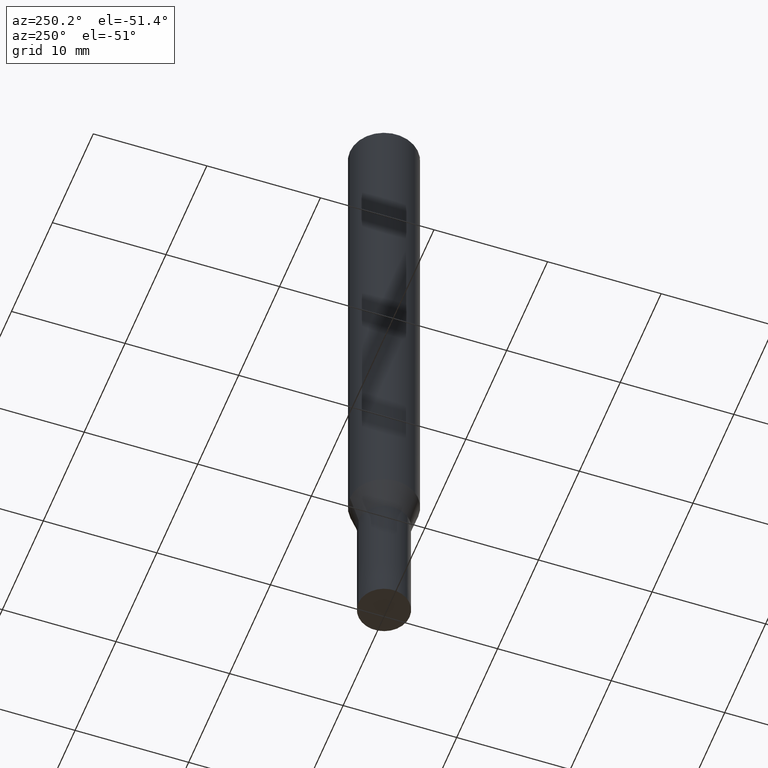
[diagram: clean part render]
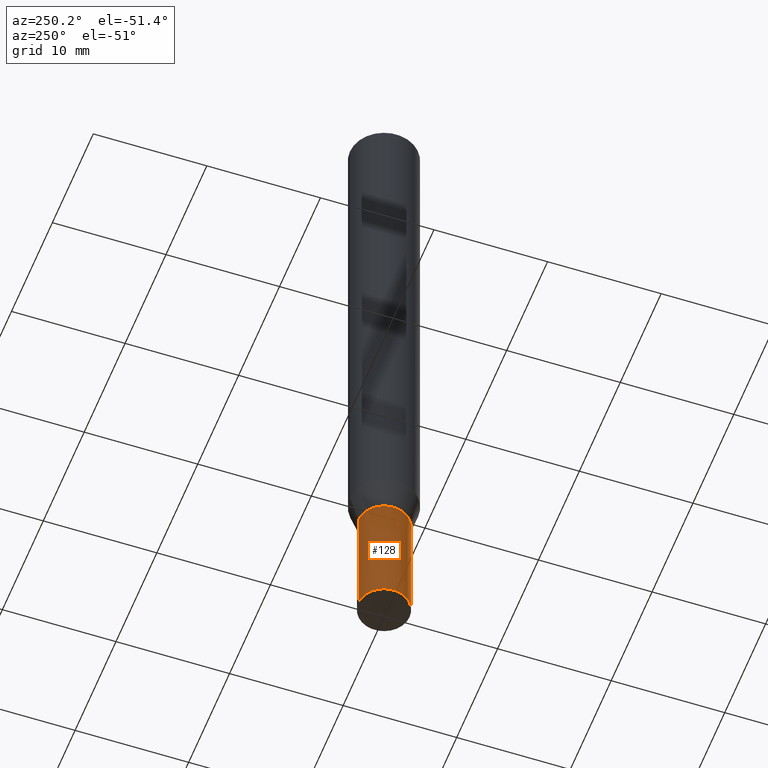
[diagram: same view with one face highlighted and labeled with its STEP entity id]
A machine part, auxiliary view. The second image highlights one B-rep face of the part: STEP entity #128.
In plain terms, the highlighted conical surface has half-angle 0.001 deg.
Its self-contained STEP definition (entity closure, byte-faithful):
#86=VERTEX_POINT('',#207);
#92=EDGE_CURVE('',#156,#86,#214,.T.);
#98=EDGE_CURVE('',#86,#148,#221,.T.);
#104=EDGE_CURVE('',#156,#108,#228,.T.);
#108=VERTEX_POINT('',#232);
#120=EDGE_CURVE('',#148,#108,#247,.T.);
#128=ADVANCED_FACE('',(#255),#256,.T.);
#148=VERTEX_POINT('',#278);
#156=VERTEX_POINT('',#286);
#207=CARTESIAN_POINT('',(2.75524183546497E-016,-2.2499,-49.0));
#214=LINE('',#344,#345);
#221=CIRCLE('',#354,2.2499);
#228=CIRCLE('',#362,2.25);
#232=CARTESIAN_POINT('',(0.0,2.25,-60.0));
#247=LINE('',#387,#388);
#255=FACE_OUTER_BOUND('',#398,.T.);
#256=CONICAL_SURFACE('',#399,2.24995,9.09090909067784E-006);
#278=CARTESIAN_POINT('',(0.0,2.2499,-49.0));
#286=CARTESIAN_POINT('',(2.75536429610035E-016,-2.25,-60.0));
#344=CARTESIAN_POINT('',(2.75530306578266E-016,-2.24995,-54.5));
#345=VECTOR('',#490,1.0);
#354=AXIS2_PLACEMENT_3D('',#502,#503,#504);
#362=AXIS2_PLACEMENT_3D('',#513,#514,#515);
#387=CARTESIAN_POINT('',(-2.75530306578266E-016,2.24995,-54.5));
#388=VECTOR('',#541,1.0);
#398=EDGE_LOOP('',(#549,#550,#551,#552));
#399=AXIS2_PLACEMENT_3D('',#553,#554,#555);
#490=DIRECTION('',(-1.11327850343123E-021,9.09090909055262E-006,0.999999999958678));
#502=CARTESIAN_POINT('',(0.0,0.0,-49.0));
#503=DIRECTION('',(0.0,0.0,-1.0));
#504=DIRECTION('',(0.0,1.0,0.0));
#513=CARTESIAN_POINT('',(0.0,0.0,-60.0));
#514=DIRECTION('',(0.0,0.0,-1.0));
#515=DIRECTION('',(0.0,1.0,0.0));
#541=DIRECTION('',(-1.11327850343124E-021,9.09090909055262E-006,-0.999999999958678));
#549=ORIENTED_EDGE('',*,*,#120,.T.);
#550=ORIENTED_EDGE('',*,*,#104,.F.);
#551=ORIENTED_EDGE('',*,*,#92,.T.);
#552=ORIENTED_EDGE('',*,*,#98,.T.);
#553=CARTESIAN_POINT('',(0.0,0.0,-54.5));
#554=DIRECTION('',(0.0,-0.0,-1.0));
#555=DIRECTION('',(0.0,1.0,0.0));